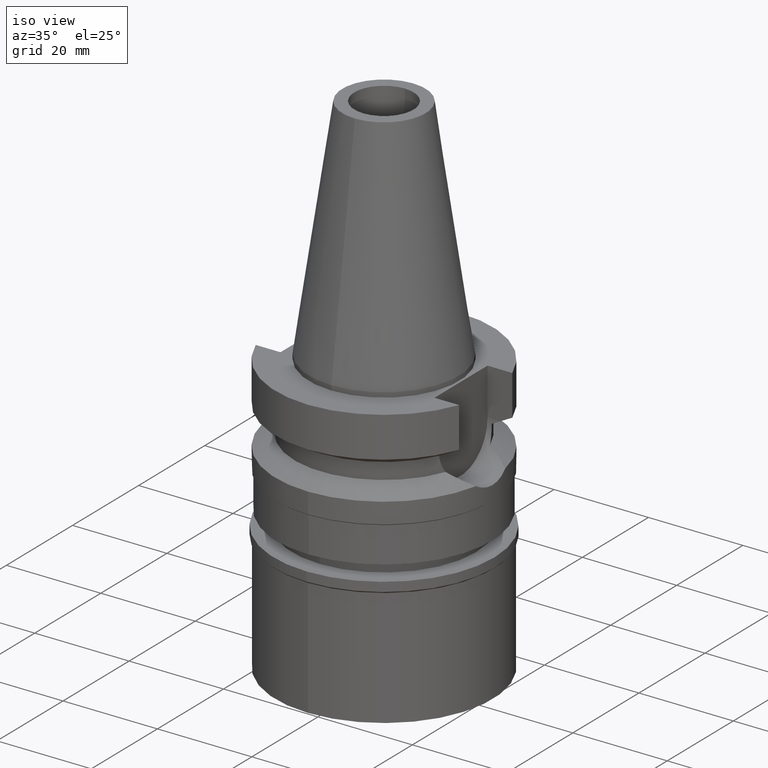
[diagram: clean part render]
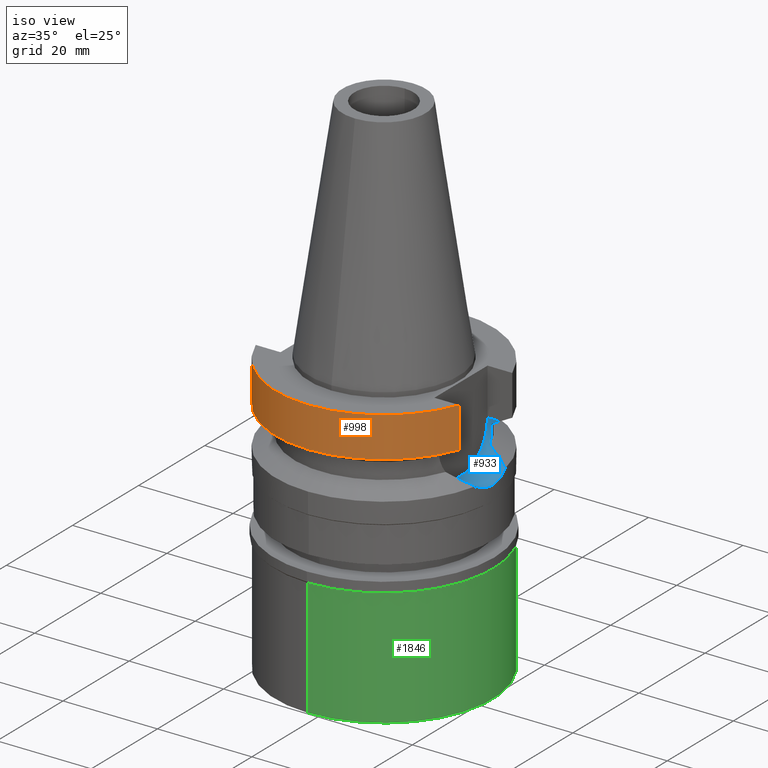
[diagram: same view with three faces highlighted in distinct colors, each labeled with its STEP entity id]
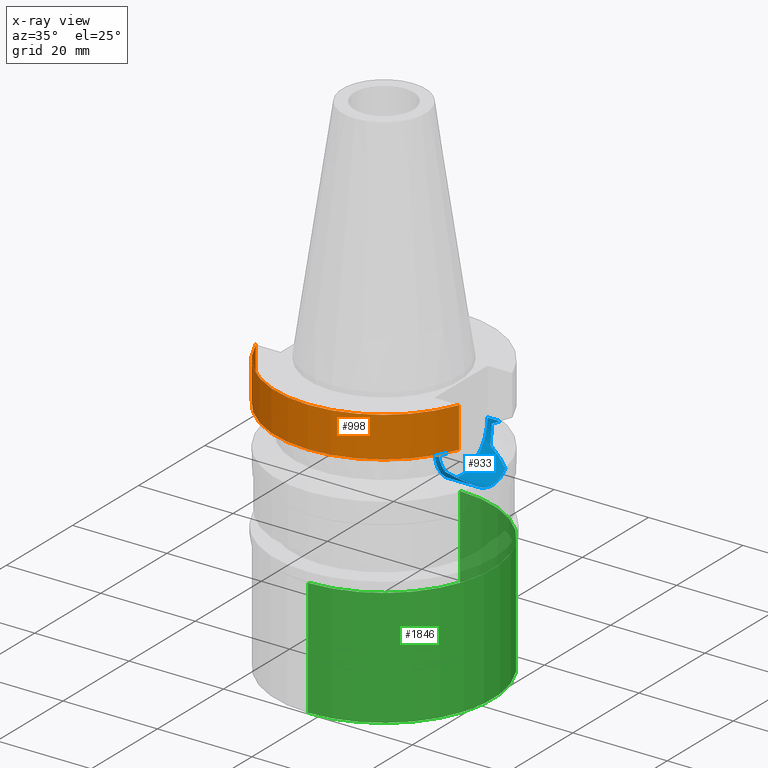
[diagram: x-ray of the same camera — body ghosted, the three highlighted faces saturated]
A machine part, iso view with three faces highlighted in distinct colors.
The next image is the same camera in x-ray (body ghosted, the three faces saturated) — at least one of them is partly hidden behind the body in this view.
Their STEP definitions:

[orange] entity #998 — the highlighted cylindrical surface (partial cylindrical patch) has radius 23 mm, axis along (0, 0, -1).
#10 = VERTEX_POINT ( 'NONE', #2757 ) ;
#69 = CARTESIAN_POINT ( 'NONE',  ( 21.54524309446999908, -8.050000000002000888, -9.567208369710998639 ) ) ;
#118 = DIRECTION ( 'NONE',  ( 1.843191795637992365E-08, -4.933165888406983159E-08, 0.9999999999999985567 ) ) ;
#319 = CARTESIAN_POINT ( 'NONE',  ( -21.54524325238000060, -8.049999577366000025, -9.567211146628999074 ) ) ;
#365 = DIRECTION ( 'NONE',  ( 0.0000000000000000000, 0.0000000000000000000, 1.000000000000000000 ) ) ;
#400 = VECTOR ( 'NONE', #2115, 1000.000000000000114 ) ;
#436 = AXIS2_PLACEMENT_3D ( 'NONE', #2185, #1498, #1254 ) ;
#486 = DIRECTION ( 'NONE',  ( 0.0000000000000000000, -1.000000000000000000, 0.0000000000000000000 ) ) ;
#676 = FACE_OUTER_BOUND ( 'NONE', #1378, .T. ) ;
#725 = EDGE_CURVE ( 'NONE', #2182, #10, #1947, .T. ) ;
#732 = LINE ( 'NONE', #1458, #400 ) ;
#818 = AXIS2_PLACEMENT_3D ( 'NONE', #1005, #365, #2922 ) ;
#998 = ADVANCED_FACE ( 'NONE', ( #676 ), #2066, .T. ) ;
#1005 = CARTESIAN_POINT ( 'NONE',  ( 0.0000000000000000000, 0.0000000000000000000, -9.567208369710998639 ) ) ;
#1011 = EDGE_CURVE ( 'NONE', #1447, #2473, #732, .T. ) ;
#1189 = ORIENTED_EDGE ( 'NONE', *, *, #2936, .T. ) ;
#1254 = DIRECTION ( 'NONE',  ( 0.0000000000000000000, -1.000000000000000000, 0.0000000000000000000 ) ) ;
#1378 = EDGE_LOOP ( 'NONE', ( #1777, #2254, #2719, #1189 ) ) ;
#1447 = VERTEX_POINT ( 'NONE', #2413 ) ;
#1458 = CARTESIAN_POINT ( 'NONE',  ( 21.54524309446999908, -8.050000000000000711, -1.000000000000000000 ) ) ;
#1498 = DIRECTION ( 'NONE',  ( 0.0000000000000000000, 0.0000000000000000000, -1.000000000000000000 ) ) ;
#1560 = VECTOR ( 'NONE', #118, 1000.000000000000114 ) ;
#1710 = AXIS2_PLACEMENT_3D ( 'NONE', #2984, #1824, #486 ) ;
#1777 = ORIENTED_EDGE ( 'NONE', *, *, #725, .F. ) ;
#1824 = DIRECTION ( 'NONE',  ( 0.0000000000000000000, 0.0000000000000000000, -1.000000000000000000 ) ) ;
#1947 = LINE ( 'NONE', #319, #1560 ) ;
#2052 = CIRCLE ( 'NONE', #818, 23.00000000000000000 ) ;
#2066 = CYLINDRICAL_SURFACE ( 'NONE', #1710, 23.00000000000000000 ) ;
#2115 = DIRECTION ( 'NONE',  ( -9.134800745262689569E-08, -2.444862507563914651E-07, -0.9999999999999659162 ) ) ;
#2182 = VERTEX_POINT ( 'NONE', #2573 ) ;
#2185 = CARTESIAN_POINT ( 'NONE',  ( 0.0000000000000000000, 0.0000000000000000000, -1.000000000000000000 ) ) ;
#2254 = ORIENTED_EDGE ( 'NONE', *, *, #2979, .T. ) ;
#2413 = CARTESIAN_POINT ( 'NONE',  ( 21.54524309446999908, -8.050000000000000711, -1.000000000000000000 ) ) ;
#2473 = VERTEX_POINT ( 'NONE', #69 ) ;
#2573 = CARTESIAN_POINT ( 'NONE',  ( -21.54524325238000060, -8.049999577366000025, -9.567211146628999074 ) ) ;
#2588 = CIRCLE ( 'NONE', #436, 23.00000000000000000 ) ;
#2719 = ORIENTED_EDGE ( 'NONE', *, *, #1011, .F. ) ;
#2757 = CARTESIAN_POINT ( 'NONE',  ( -21.54524309446999908, -8.050000000000000711, -1.000000000000000000 ) ) ;
#2922 = DIRECTION ( 'NONE',  ( 0.0000000000000000000, -1.000000000000000000, 0.0000000000000000000 ) ) ;
#2936 = EDGE_CURVE ( 'NONE', #1447, #10, #2588, .T. ) ;
#2979 = EDGE_CURVE ( 'NONE', #2182, #2473, #2052, .T. ) ;
#2984 = CARTESIAN_POINT ( 'NONE',  ( 0.0000000000000000000, 0.0000000000000000000, 53.26999999999999602 ) ) ;

[blue] entity #933 — the highlighted cylindrical surface (partial cylindrical patch) has radius 8.05 mm, axis along (1, 0, 0).
#7 = CARTESIAN_POINT ( 'NONE',  ( 22.55786346208000026, -4.488072640470000430, -17.63279163029000074 ) ) ;
#17 = CARTESIAN_POINT ( 'NONE',  ( 22.55786346208000026, 4.488072640470000430, -17.63279163029000074 ) ) ;
#19 = CARTESIAN_POINT ( 'NONE',  ( 22.77613773196694069, -3.202598962692567941, -18.33823203028215332 ) ) ;
#54 = CARTESIAN_POINT ( 'NONE',  ( 23.00000063371999204, 0.3818371251552784007, -18.99999999999999645 ) ) ;
#55 = CARTESIAN_POINT ( 'NONE',  ( 17.40044238433327806, -7.630712768909917010, -13.51465132396135793 ) ) ;
#63 = CARTESIAN_POINT ( 'NONE',  ( 20.64726242631802577, 5.624790202861987609, -16.70886274453432563 ) ) ;
#64 = B_SPLINE_CURVE_WITH_KNOTS ( 'NONE', 3,
 ( #2737, #859, #1591, #921, #2985, #2262, #208, #1150, #2050, #693, #1135, #1624, #438, #2327, #1119 ),
 .UNSPECIFIED., .F., .F.,
 ( 4, 2, 2, 1, 1, 1, 2, 2, 4 ),
 ( 0.0000000000000000000, 0.2499999999999829581, 0.3749999999999750755, 0.4374999999999722444, 0.4687499999999715783, 0.4843749999999710787, 0.4921874999999709677, 0.4999999999999708011, 1.000000000000000000 ),
 .UNSPECIFIED. ) ;
#74 = ORIENTED_EDGE ( 'NONE', *, *, #2083, .T. ) ;
#191 = CYLINDRICAL_SURFACE ( 'NONE', #829, 8.050000000000000711 ) ;
#198 = CARTESIAN_POINT ( 'NONE',  ( 17.41895439078518137, -7.588315328352102540, -13.63701416030232139 ) ) ;
#201 = LINE ( 'NONE', #1438, #2698 ) ;
#208 = CARTESIAN_POINT ( 'NONE',  ( 17.45712581401889452, 7.500313914453454522, -13.87517845135815620 ) ) ;
#210 = ORIENTED_EDGE ( 'NONE', *, *, #2735, .F. ) ;
#232 = CARTESIAN_POINT ( 'NONE',  ( 18.28103765835420091, -6.596996908372620538, -15.57281230291223295 ) ) ;
#234 = CARTESIAN_POINT ( 'NONE',  ( 18.80475094428508953, 6.435582153046889964, -15.82225384809739843 ) ) ;
#247 = B_SPLINE_CURVE_WITH_KNOTS ( 'NONE', 3,
 ( #2485, #2436, #547, #1229, #558, #379, #1310, #55, #1781, #1696, #1473, #198, #901, #884, #2060 ),
 .UNSPECIFIED., .F., .F.,
 ( 4, 2, 2, 1, 1, 1, 2, 2, 4 ),
 ( 0.0000000000000000000, 0.2500000000000099365, 0.3750000000000148770, 0.4375000000000173750, 0.4687500000000182077, 0.4843750000000184852, 0.4921875000000184852, 0.5000000000000185407, 1.000000000000000000 ),
 .UNSPECIFIED. ) ;
#254 = CARTESIAN_POINT ( 'NONE',  ( 20.18907338991207467, -5.842978117099258739, -16.48811858186365598 ) ) ;
#259 = CARTESIAN_POINT ( 'NONE',  ( 22.63131207849706072, -4.118906632409983892, -17.88071853752010298 ) ) ;
#288 = DIRECTION ( 'NONE',  ( 0.9999999999976612042, -2.130104031153920346E-06, -3.746083742387856505E-07 ) ) ;
#297 = EDGE_CURVE ( 'NONE', #1293, #1238, #1597, .T. ) ;
#318 = ORIENTED_EDGE ( 'NONE', *, *, #1827, .T. ) ;
#346 = ORIENTED_EDGE ( 'NONE', *, *, #473, .T. ) ;
#379 = CARTESIAN_POINT ( 'NONE',  ( 17.36635961649542992, -7.708092773718542290, -13.27245751295638598 ) ) ;
#399 = ORIENTED_EDGE ( 'NONE', *, *, #1916, .T. ) ;
#417 = VERTEX_POINT ( 'NONE', #2489 ) ;
#438 = CARTESIAN_POINT ( 'NONE',  ( 17.32787896221852719, 7.797470577422212834, -13.04820123580084612 ) ) ;
#447 = ORIENTED_EDGE ( 'NONE', *, *, #297, .T. ) ;
#456 = EDGE_CURVE ( 'NONE', #641, #417, #201, .T. ) ;
#471 = CARTESIAN_POINT ( 'NONE',  ( 22.80073832530897349, -3.022754176254002445, -18.41332850623965456 ) ) ;
#473 = EDGE_CURVE ( 'NONE', #2873, #1082, #3027, .T. ) ;
#501 = CARTESIAN_POINT ( 'NONE',  ( 22.69506172302091329, -3.747764842438814359, -18.08562956453642556 ) ) ;
#517 = CARTESIAN_POINT ( 'NONE',  ( 21.19892402442228274, 5.341375852146419412, -16.97506331169235239 ) ) ;
#528 = CARTESIAN_POINT ( 'NONE',  ( 21.45839919446461153, 5.195234454325503570, -17.10047461492295184 ) ) ;
#547 = CARTESIAN_POINT ( 'NONE',  ( 17.27394636238419068, -7.913402763646848470, -12.45748919319677839 ) ) ;
#558 = CARTESIAN_POINT ( 'NONE',  ( 17.33749705519685236, -7.773004237784921777, -13.04926595512233689 ) ) ;
#575 = CARTESIAN_POINT ( 'NONE',  ( 22.55786346208000026, -4.488072640470000430, -17.63279163029000074 ) ) ;
#641 = VERTEX_POINT ( 'NONE', #672 ) ;
#672 = CARTESIAN_POINT ( 'NONE',  ( 18.96736186693999926, -8.050001277873001015, -10.94999977540000025 ) ) ;
#677 = CARTESIAN_POINT ( 'NONE',  ( 17.23531622907000482, 7.996491146279001150, -11.87660607779999999 ) ) ;
#685 = VERTEX_POINT ( 'NONE', #1162 ) ;
#693 = CARTESIAN_POINT ( 'NONE',  ( 17.42519596513120916, 7.573974453343311097, -13.67717551128585107 ) ) ;
#716 = CARTESIAN_POINT ( 'NONE',  ( 22.87778854849732824, -2.366576874389723972, -18.64427962363035363 ) ) ;
#759 = CARTESIAN_POINT ( 'NONE',  ( 22.91436099164421236, 1.985013697872551219, -18.75255439335652241 ) ) ;
#786 = ORIENTED_EDGE ( 'NONE', *, *, #2007, .T. ) ;
#800 = CARTESIAN_POINT ( 'NONE',  ( 20.44983915543942388, -5.720595103240595947, -16.61370879047469629 ) ) ;
#829 = AXIS2_PLACEMENT_3D ( 'NONE', #1610, #1387, #1349 ) ;
#843 = AXIS2_PLACEMENT_3D ( 'NONE', #2902, #1726, #1959 ) ;
#859 = CARTESIAN_POINT ( 'NONE',  ( 17.68525611697029376, 6.947863909903945867, -15.03060160575601500 ) ) ;
#884 = CARTESIAN_POINT ( 'NONE',  ( 17.61319088182276360, -7.137211827839441192, -14.73799367699437646 ) ) ;
#901 = CARTESIAN_POINT ( 'NONE',  ( 17.50080678979015758, -7.400327745584022843, -14.16609910741580336 ) ) ;
#921 = CARTESIAN_POINT ( 'NONE',  ( 17.53678553324544609, 7.312898235672848912, -14.31874682332543713 ) ) ;
#933 = ADVANCED_FACE ( 'NONE', ( #2310 ), #191, .F. ) ;
#938 = CARTESIAN_POINT ( 'NONE',  ( 22.84972471002366490, -2.625489052431615455, -18.56078264742109951 ) ) ;
#964 = CARTESIAN_POINT ( 'NONE',  ( 22.27053859987380946, 4.695530493338996081, -17.49346573700664464 ) ) ;
#967 = CARTESIAN_POINT ( 'NONE',  ( 22.86647651646926604, -2.473921394471491730, -18.61066494072541389 ) ) ;
#971 = VERTEX_POINT ( 'NONE', #1808 ) ;
#995 = CARTESIAN_POINT ( 'NONE',  ( 22.96071076208665218, 1.352603942300590667, -18.88798258443712186 ) ) ;
#1018 = CARTESIAN_POINT ( 'NONE',  ( 17.23531622907000482, 7.996491146279001150, -11.87660607779999999 ) ) ;
#1043 = EDGE_CURVE ( 'NONE', #1082, #3017, #2889, .T. ) ;
#1082 = VERTEX_POINT ( 'NONE', #1256 ) ;
#1119 = CARTESIAN_POINT ( 'NONE',  ( 17.23531622907000482, 7.996491146279001150, -11.87660607779999999 ) ) ;
#1135 = CARTESIAN_POINT ( 'NONE',  ( 17.42264579049249562, 7.579835985885948091, -13.66084151442364814 ) ) ;
#1144 = CARTESIAN_POINT ( 'NONE',  ( 20.02793769433023030, -5.915190431567670437, -16.41059062409435043 ) ) ;
#1150 = CARTESIAN_POINT ( 'NONE',  ( 17.43818754212541577, 7.544069795731926042, -13.75921087036248025 ) ) ;
#1161 = VECTOR ( 'NONE', #288, 1000.000000000000000 ) ;
#1162 = CARTESIAN_POINT ( 'NONE',  ( 17.23531135316000018, -7.996501749113000379, -11.87660739352000050 ) ) ;
#1163 = CARTESIAN_POINT ( 'NONE',  ( 16.29999999999999716, 8.050000000000000711, -10.94999999999999929 ) ) ;
#1179 = CARTESIAN_POINT ( 'NONE',  ( 17.75736593456000278, 6.758398853743999624, -15.32339055352999857 ) ) ;
#1229 = CARTESIAN_POINT ( 'NONE',  ( 17.32017193870973770, -7.811515975072611973, -12.90082288099408281 ) ) ;
#1234 = EDGE_CURVE ( 'NONE', #685, #2873, #247, .T. ) ;
#1238 = VERTEX_POINT ( 'NONE', #1404 ) ;
#1240 = CARTESIAN_POINT ( 'NONE',  ( 20.88080945952053824, 5.507748766864517087, -16.82150489549746553 ) ) ;
#1242 = CARTESIAN_POINT ( 'NONE',  ( 22.89059138668635285, 2.239534525029722278, -18.68227636466648889 ) ) ;
#1256 = CARTESIAN_POINT ( 'NONE',  ( 22.55786346208000026, -4.488072640470000430, -17.63279163029000074 ) ) ;
#1271 = CARTESIAN_POINT ( 'NONE',  ( 22.70474339555594767, 3.749827574015377696, -18.12858705052943620 ) ) ;
#1293 = VERTEX_POINT ( 'NONE', #1354 ) ;
#1310 = CARTESIAN_POINT ( 'NONE',  ( 17.38150961878668710, -7.673851445153797357, -13.38418433685299291 ) ) ;
#1345 = CARTESIAN_POINT ( 'NONE',  ( 23.00000063371999914, 1.451092413001999989E-13, -19.00000207062000257 ) ) ;
#1349 = DIRECTION ( 'NONE',  ( 0.0000000000000000000, 0.0000000000000000000, -1.000000000000000000 ) ) ;
#1350 = CARTESIAN_POINT ( 'NONE',  ( 18.96738966530000070, 8.049994318182998043, -10.95000099923000114 ) ) ;
#1354 = CARTESIAN_POINT ( 'NONE',  ( 22.55786346208000026, 4.488072640470000430, -17.63279163029000074 ) ) ;
#1380 = CARTESIAN_POINT ( 'NONE',  ( 19.47455353943849587, -6.151348875885365608, -16.14462795322094024 ) ) ;
#1387 = DIRECTION ( 'NONE',  ( 1.000000000000000000, 0.0000000000000000000, 0.0000000000000000000 ) ) ;
#1398 = CARTESIAN_POINT ( 'NONE',  ( 22.87445461029801663, -2.398694468133151236, -18.63437673730483013 ) ) ;
#1404 = CARTESIAN_POINT ( 'NONE',  ( 17.75736593456000278, 6.758398853743999624, -15.32339055352999857 ) ) ;
#1415 = EDGE_LOOP ( 'NONE', ( #447, #399, #786, #210, #318, #2824, #74, #2314, #346, #1652, #1616 ) ) ;
#1438 = CARTESIAN_POINT ( 'NONE',  ( 18.96736186693999926, -8.050001277873001015, -10.94999977540000025 ) ) ;
#1441 = CARTESIAN_POINT ( 'NONE',  ( 20.57793231187029193, 5.658812211386831770, -16.67543873584481062 ) ) ;
#1473 = CARTESIAN_POINT ( 'NONE',  ( 17.41733678394309237, -7.592028263049626524, -13.62650975491022542 ) ) ;
#1496 = CARTESIAN_POINT ( 'NONE',  ( 20.52858419587664329, -5.682773299799800171, -16.65165355330002228 ) ) ;
#1512 = CARTESIAN_POINT ( 'NONE',  ( 22.99017816581165263, 0.7692921463506711133, -18.97278688086499798 ) ) ;
#1591 = CARTESIAN_POINT ( 'NONE',  ( 17.62109728944295028, 7.108454003987729308, -14.74079473634226467 ) ) ;
#1597 = B_SPLINE_CURVE_WITH_KNOTS ( 'NONE', 3,
 ( #17, #964, #1882, #528, #517, #1240, #1707, #63, #2348, #1441, #2866, #234, #1179 ),
 .UNSPECIFIED., .F., .F.,
 ( 4, 2, 1, 1, 1, 2, 2, 4 ),
 ( 0.0000000000000000000, 0.2499999999999963363, 0.3749999999999943934, 0.4374999999999937828, 0.4687499999999938938, 0.4843749999999935607, 0.4999999999999932276, 1.000000000000000000 ),
 .UNSPECIFIED. ) ;
#1601 = DIRECTION ( 'NONE',  ( -0.9999999999998816502, 4.790775574836907576E-07, -8.420253777260848103E-08 ) ) ;
#1610 = CARTESIAN_POINT ( 'NONE',  ( 16.29999999999999716, 0.0000000000000000000, -10.94999999999999929 ) ) ;
#1611 = CARTESIAN_POINT ( 'NONE',  ( 17.72598986851142300, 8.027133616167654750, -11.61218197892570814 ) ) ;
#1616 = ORIENTED_EDGE ( 'NONE', *, *, #2983, .T. ) ;
#1624 = CARTESIAN_POINT ( 'NONE',  ( 17.42156015895049137, 7.582330336620313638, -13.65386102521375200 ) ) ;
#1634 = CARTESIAN_POINT ( 'NONE',  ( 22.88094006936555758, -2.335937757593933295, -18.65363902240067517 ) ) ;
#1637 = VERTEX_POINT ( 'NONE', #2931 ) ;
#1639 = CARTESIAN_POINT ( 'NONE',  ( 19.70024457996024125, -6.058098506093024582, -16.25302307303120841 ) ) ;
#1652 = ORIENTED_EDGE ( 'NONE', *, *, #1043, .T. ) ;
#1696 = CARTESIAN_POINT ( 'NONE',  ( 17.41448236947529793, -7.598575320515510434, -13.60786581932317318 ) ) ;
#1707 = CARTESIAN_POINT ( 'NONE',  ( 20.71790379377324598, 5.589845596866767963, -16.74292470536434507 ) ) ;
#1708 = CARTESIAN_POINT ( 'NONE',  ( 22.88321380690882023, 2.313548464800633919, -18.66039023119144247 ) ) ;
#1726 = DIRECTION ( 'NONE',  ( -1.000000000000000000, 0.0000000000000000000, 0.0000000000000000000 ) ) ;
#1732 = CARTESIAN_POINT ( 'NONE',  ( 21.31470347196260207, -5.301073478547018603, -17.03055208035741330 ) ) ;
#1781 = CARTESIAN_POINT ( 'NONE',  ( 17.41022320782494504, -7.608337958398714740, -13.57990024115141203 ) ) ;
#1808 = CARTESIAN_POINT ( 'NONE',  ( 18.96738966530000070, 8.049994318182998043, -10.95000099923000114 ) ) ;
#1827 = EDGE_CURVE ( 'NONE', #1637, #417, #2662, .T. ) ;
#1882 = CARTESIAN_POINT ( 'NONE',  ( 21.95975692519418843, 4.898761652953288248, -17.34295161599429491 ) ) ;
#1903 = CARTESIAN_POINT ( 'NONE',  ( 23.00000063371999914, 1.451092413001999989E-13, -19.00000207062000257 ) ) ;
#1916 = EDGE_CURVE ( 'NONE', #1238, #2934, #64, .T. ) ;
#1940 = CARTESIAN_POINT ( 'NONE',  ( 18.30417677567592349, -8.050000009833846448, -11.30245973914374424 ) ) ;
#1953 = CARTESIAN_POINT ( 'NONE',  ( 22.88699429150508635, 2.275833945437127248, -18.67160857845826172 ) ) ;
#1959 = DIRECTION ( 'NONE',  ( 0.0000000000000000000, 0.0000000000000000000, -1.000000000000000000 ) ) ;
#1986 = CARTESIAN_POINT ( 'NONE',  ( 17.75736593456000278, -6.758398853743999624, -15.32339055352999857 ) ) ;
#2007 = EDGE_CURVE ( 'NONE', #2934, #971, #2716, .T. ) ;
#2050 = CARTESIAN_POINT ( 'NONE',  ( 17.42904452100544788, 7.565124676940911286, -13.70171207084477594 ) ) ;
#2060 = CARTESIAN_POINT ( 'NONE',  ( 17.75736593456000278, -6.758398853743999624, -15.32339055352999857 ) ) ;
#2081 = CARTESIAN_POINT ( 'NONE',  ( 18.30334768058808592, 8.049999956193227391, -11.30291651749210047 ) ) ;
#2083 = EDGE_CURVE ( 'NONE', #641, #685, #2779, .T. ) ;
#2092 = CARTESIAN_POINT ( 'NONE',  ( 20.37232102695204361, -5.757489721573401553, -16.57636282945693296 ) ) ;
#2172 = CARTESIAN_POINT ( 'NONE',  ( 23.00000063371999914, 1.451092413001999989E-13, -19.00000207062000257 ) ) ;
#2199 = CARTESIAN_POINT ( 'NONE',  ( 22.55786346208000026, 4.488072640470000430, -17.63279163029000074 ) ) ;
#2262 = CARTESIAN_POINT ( 'NONE',  ( 17.47447672647655281, 7.459902742165785305, -13.97618157013059914 ) ) ;
#2310 = FACE_OUTER_BOUND ( 'NONE', #1415, .T. ) ;
#2314 = ORIENTED_EDGE ( 'NONE', *, *, #1234, .T. ) ;
#2327 = CARTESIAN_POINT ( 'NONE',  ( 17.26627806865186088, 7.929758636638089442, -12.45251551475356955 ) ) ;
#2329 = B_SPLINE_CURVE_WITH_KNOTS ( 'NONE', 3,
 ( #2172, #54, #1512, #995, #2868, #2444, #759, #2421, #1242, #1953, #2881, #1708, #2658, #1271, #2199 ),
 .UNSPECIFIED., .F., .F.,
 ( 4, 2, 2, 1, 1, 1, 2, 2, 4 ),
 ( 0.0000000000000000000, 0.2500000000000046629, 0.3750000000000067724, 0.4375000000000080491, 0.4687500000000083267, 0.4843750000000083267, 0.4921875000000084932, 0.5000000000000086597, 1.000000000000000000 ),
 .UNSPECIFIED. ) ;
#2337 = CARTESIAN_POINT ( 'NONE',  ( 22.96072292176802065, -1.550239298069495675, -18.89053771792615777 ) ) ;
#2348 = CARTESIAN_POINT ( 'NONE',  ( 20.59998492500043454, 5.648032631676618287, -16.68606941451320225 ) ) ;
#2364 = CARTESIAN_POINT ( 'NONE',  ( 18.77579352504809052, -6.424230641240369799, -15.80950315661087657 ) ) ;
#2385 = CARTESIAN_POINT ( 'NONE',  ( 23.00000063371999914, -0.7635895633276825745, -19.00000000000000711 ) ) ;
#2421 = CARTESIAN_POINT ( 'NONE',  ( 22.89878317144585296, 2.154771474996231451, -18.70653894764611991 ) ) ;
#2432 = CARTESIAN_POINT ( 'NONE',  ( 21.98318929528203824, -4.903005994390072786, -17.35412799144314988 ) ) ;
#2436 = CARTESIAN_POINT ( 'NONE',  ( 17.25079567568156236, -7.963118628062036741, -12.16462305695634072 ) ) ;
#2444 = CARTESIAN_POINT ( 'NONE',  ( 22.92633212440750157, 1.839198316237363295, -18.78771497117504552 ) ) ;
#2485 = CARTESIAN_POINT ( 'NONE',  ( 17.23531135316000018, -7.996501749113000379, -11.87660739352000050 ) ) ;
#2489 = CARTESIAN_POINT ( 'NONE',  ( 16.29999999999999716, -8.050000000000000711, -10.94999999999999929 ) ) ;
#2546 = CARTESIAN_POINT ( 'NONE',  ( 17.75736593456000278, -6.758398853743999624, -15.32339055352999857 ) ) ;
#2613 = CARTESIAN_POINT ( 'NONE',  ( 22.87999223065906307, -2.345192717010638805, -18.65082438113541485 ) ) ;
#2629 = CARTESIAN_POINT ( 'NONE',  ( 17.72682660441592617, -8.027186146836505998, -11.61172867091523919 ) ) ;
#2658 = CARTESIAN_POINT ( 'NONE',  ( 22.81283258113594314, 3.006578349950099316, -18.45139701116924869 ) ) ;
#2662 = CIRCLE ( 'NONE', #843, 8.050000000000000711 ) ;
#2670 = CARTESIAN_POINT ( 'NONE',  ( 20.50129200263073770, -5.695942649675601821, -16.63850093874715341 ) ) ;
#2698 = VECTOR ( 'NONE', #1601, 1000.000000000000114 ) ;
#2716 = B_SPLINE_CURVE_WITH_KNOTS ( 'NONE', 3,
 ( #677, #1611, #2081, #1350 ),
 .UNSPECIFIED., .F., .F.,
 ( 4, 4 ),
 ( 0.0000000000000000000, 1.000000000000000000 ),
 .UNSPECIFIED. ) ;
#2735 = EDGE_CURVE ( 'NONE', #1637, #971, #2852, .T. ) ;
#2737 = CARTESIAN_POINT ( 'NONE',  ( 17.75736593456000278, 6.758398853743999624, -15.32339055352999857 ) ) ;
#2779 = B_SPLINE_CURVE_WITH_KNOTS ( 'NONE', 3,
 ( #2820, #1940, #2629, #2809 ),
 .UNSPECIFIED., .F., .F.,
 ( 4, 4 ),
 ( 0.0000000000000000000, 1.000000000000000000 ),
 .UNSPECIFIED. ) ;
#2809 = CARTESIAN_POINT ( 'NONE',  ( 17.23531135316000018, -7.996501749113000379, -11.87660739352000050 ) ) ;
#2820 = CARTESIAN_POINT ( 'NONE',  ( 18.96736186693999926, -8.050001277873001015, -10.94999977540000025 ) ) ;
#2824 = ORIENTED_EDGE ( 'NONE', *, *, #456, .F. ) ;
#2852 = LINE ( 'NONE', #1163, #1161 ) ;
#2854 = CARTESIAN_POINT ( 'NONE',  ( 22.83400210086209370, -2.757209696531425447, -18.51367956023262096 ) ) ;
#2866 = CARTESIAN_POINT ( 'NONE',  ( 19.73643981248564572, 6.067402942569533941, -16.26984848140957141 ) ) ;
#2868 = CARTESIAN_POINT ( 'NONE',  ( 22.94843267720124302, 1.547385716375668574, -18.85239223957425025 ) ) ;
#2873 = VERTEX_POINT ( 'NONE', #1986 ) ;
#2881 = CARTESIAN_POINT ( 'NONE',  ( 22.88457704354327404, 2.300027115007879708, -18.66443675561299642 ) ) ;
#2889 = B_SPLINE_CURVE_WITH_KNOTS ( 'NONE', 3,
 ( #7, #259, #501, #19, #471, #2854, #938, #967, #1398, #716, #2613, #1634, #2337, #2385, #1903 ),
 .UNSPECIFIED., .F., .F.,
 ( 4, 2, 2, 1, 1, 1, 2, 2, 4 ),
 ( 0.0000000000000000000, 0.2499999999999975575, 0.3749999999999960032, 0.4374999999999955036, 0.4687499999999955036, 0.4843749999999954481, 0.4921874999999957256, 0.4999999999999960032, 1.000000000000000000 ),
 .UNSPECIFIED. ) ;
#2902 = CARTESIAN_POINT ( 'NONE',  ( 16.29999999999999716, 0.0000000000000000000, -10.94999999999999929 ) ) ;
#2931 = CARTESIAN_POINT ( 'NONE',  ( 16.29999999999999716, 8.050000000000000711, -10.94999999999999929 ) ) ;
#2934 = VERTEX_POINT ( 'NONE', #1018 ) ;
#2983 = EDGE_CURVE ( 'NONE', #3017, #1293, #2329, .T. ) ;
#2985 = CARTESIAN_POINT ( 'NONE',  ( 17.51066936202854052, 7.374980357714267853, -14.18014860265152244 ) ) ;
#3017 = VERTEX_POINT ( 'NONE', #1345 ) ;
#3027 = B_SPLINE_CURVE_WITH_KNOTS ( 'NONE', 3,
 ( #2546, #232, #2364, #1380, #1639, #1144, #254, #2092, #800, #2670, #1496, #1732, #2432, #575 ),
 .UNSPECIFIED., .F., .F.,
 ( 4, 2, 2, 1, 1, 2, 2, 4 ),
 ( 0.0000000000000000000, 0.2499999999999952816, 0.3749999999999918954, 0.4374999999999905076, 0.4687499999999898970, 0.4843749999999902300, 0.4999999999999906741, 1.000000000000000000 ),
 .UNSPECIFIED. ) ;

[green] entity #1846 — the highlighted cylindrical surface (partial cylindrical patch) has radius 23 mm, axis along (0, 0, -1).
#100 = DIRECTION ( 'NONE',  ( 0.0000000000000000000, -1.000000000000000000, 0.0000000000000000000 ) ) ;
#129 = VECTOR ( 'NONE', #2593, 1000.000000000000000 ) ;
#260 = DIRECTION ( 'NONE',  ( 0.0000000000000000000, 0.0000000000000000000, -1.000000000000000000 ) ) ;
#313 = EDGE_CURVE ( 'NONE', #1593, #956, #2817, .T. ) ;
#333 = VECTOR ( 'NONE', #1068, 1000.000000000000000 ) ;
#369 = LINE ( 'NONE', #1023, #333 ) ;
#409 = CARTESIAN_POINT ( 'NONE',  ( 0.0000000000000000000, 23.00000000000000000, -27.19999999999999929 ) ) ;
#426 = DIRECTION ( 'NONE',  ( 0.0000000000000000000, 0.0000000000000000000, 1.000000000000000000 ) ) ;
#569 = CARTESIAN_POINT ( 'NONE',  ( 0.0000000000000000000, 0.0000000000000000000, 0.0000000000000000000 ) ) ;
#592 = CIRCLE ( 'NONE', #2069, 23.00000000000000000 ) ;
#602 = CARTESIAN_POINT ( 'NONE',  ( 0.0000000000000000000, 23.00000000000000000, -2.299999999999999822 ) ) ;
#713 = CARTESIAN_POINT ( 'NONE',  ( 0.0000000000000000000, 23.00000000000000000, -2.299999999999999822 ) ) ;
#723 = EDGE_LOOP ( 'NONE', ( #1663, #2499, #2685, #2378 ) ) ;
#815 = VERTEX_POINT ( 'NONE', #2110 ) ;
#834 = CIRCLE ( 'NONE', #2028, 23.00000000000000000 ) ;
#956 = VERTEX_POINT ( 'NONE', #409 ) ;
#1023 = CARTESIAN_POINT ( 'NONE',  ( 0.0000000000000000000, -23.00000000000000000, -2.299999999999999822 ) ) ;
#1068 = DIRECTION ( 'NONE',  ( 0.0000000000000000000, 0.0000000000000000000, -1.000000000000000000 ) ) ;
#1275 = CYLINDRICAL_SURFACE ( 'NONE', #1429, 23.00000000000000000 ) ;
#1291 = EDGE_CURVE ( 'NONE', #815, #956, #592, .T. ) ;
#1429 = AXIS2_PLACEMENT_3D ( 'NONE', #569, #2221, #100 ) ;
#1593 = VERTEX_POINT ( 'NONE', #602 ) ;
#1663 = ORIENTED_EDGE ( 'NONE', *, *, #2245, .T. ) ;
#1668 = DIRECTION ( 'NONE',  ( 0.0000000000000000000, 1.000000000000000000, 0.0000000000000000000 ) ) ;
#1816 = DIRECTION ( 'NONE',  ( 0.0000000000000000000, -1.000000000000000000, 0.0000000000000000000 ) ) ;
#1846 = ADVANCED_FACE ( 'NONE', ( #2679 ), #1275, .T. ) ;
#2028 = AXIS2_PLACEMENT_3D ( 'NONE', #2840, #260, #1668 ) ;
#2069 = AXIS2_PLACEMENT_3D ( 'NONE', #2105, #426, #1816 ) ;
#2075 = VERTEX_POINT ( 'NONE', #2159 ) ;
#2105 = CARTESIAN_POINT ( 'NONE',  ( 0.0000000000000000000, 0.0000000000000000000, -27.19999999999999929 ) ) ;
#2110 = CARTESIAN_POINT ( 'NONE',  ( 0.0000000000000000000, -23.00000000000000000, -27.19999999999999929 ) ) ;
#2159 = CARTESIAN_POINT ( 'NONE',  ( 0.0000000000000000000, -23.00000000000000000, -2.299999999999999822 ) ) ;
#2221 = DIRECTION ( 'NONE',  ( 0.0000000000000000000, 0.0000000000000000000, -1.000000000000000000 ) ) ;
#2245 = EDGE_CURVE ( 'NONE', #1593, #2075, #834, .T. ) ;
#2378 = ORIENTED_EDGE ( 'NONE', *, *, #313, .F. ) ;
#2404 = EDGE_CURVE ( 'NONE', #2075, #815, #369, .T. ) ;
#2499 = ORIENTED_EDGE ( 'NONE', *, *, #2404, .T. ) ;
#2593 = DIRECTION ( 'NONE',  ( 0.0000000000000000000, 0.0000000000000000000, -1.000000000000000000 ) ) ;
#2679 = FACE_OUTER_BOUND ( 'NONE', #723, .T. ) ;
#2685 = ORIENTED_EDGE ( 'NONE', *, *, #1291, .T. ) ;
#2817 = LINE ( 'NONE', #713, #129 ) ;
#2840 = CARTESIAN_POINT ( 'NONE',  ( 0.0000000000000000000, 0.0000000000000000000, -2.299999999999999822 ) ) ;